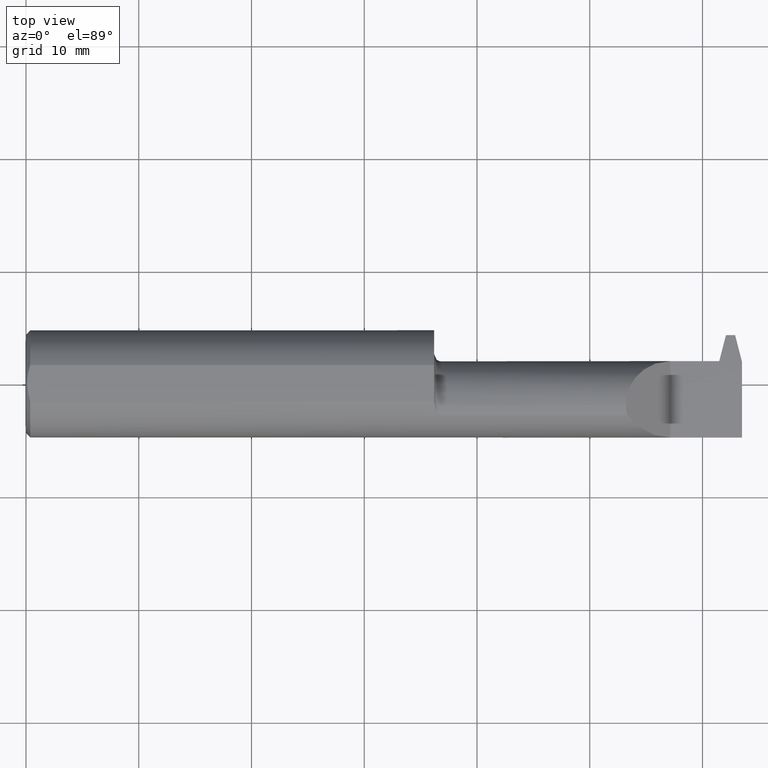
[diagram: clean part render]
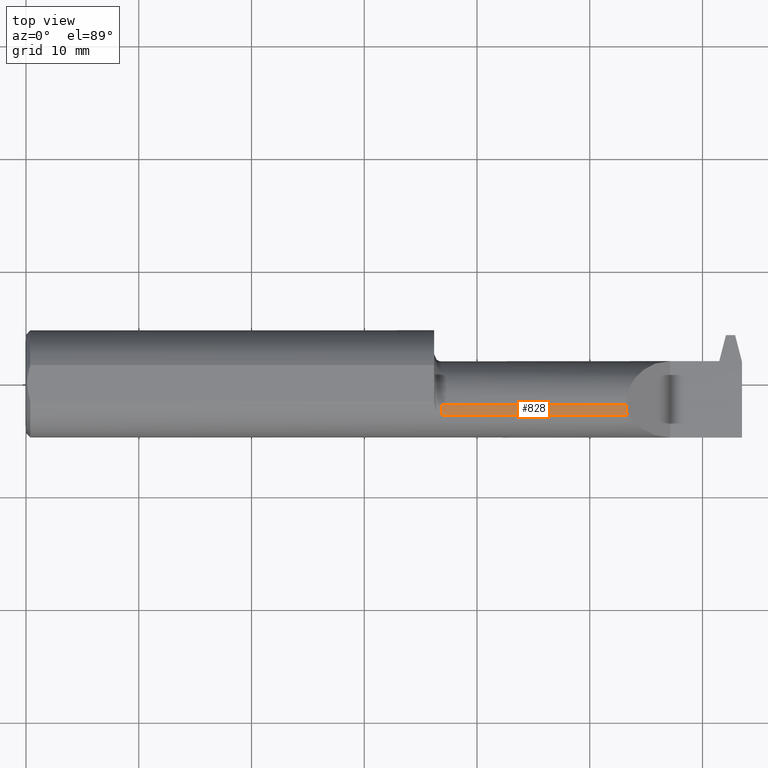
[diagram: same view with one face highlighted and labeled with its STEP entity id]
A machine part, top view. The second image highlights one B-rep face of the part: STEP entity #828.
In plain terms, the highlighted cylindrical surface (partial cylindrical patch) has radius 3.937 mm, axis along (-1, -0, -0).
Its self-contained STEP definition (entity closure, byte-faithful):
#67 = CARTESIAN_POINT ( 'NONE',  ( 2.095349999999999380, -0.07535000000000005582, 0.1549999999999999989 ) ) ;
#90 = DIRECTION ( 'NONE',  ( 1.000000000000000000, 0.000000000000000000, 0.000000000000000000 ) ) ;
#102 = FACE_OUTER_BOUND ( 'NONE', #288, .T. ) ;
#106 = CIRCLE ( 'NONE', #410, 0.1549999999999999989 ) ;
#108 = DIRECTION ( 'NONE',  ( -1.000000000000000000, -0.000000000000000000, -0.000000000000000000 ) ) ;
#121 = CARTESIAN_POINT ( 'NONE',  ( 1.450000000000000178, -0.1111655275381552427, 0.1508053314281814494 ) ) ;
#137 = ORIENTED_EDGE ( 'NONE', *, *, #215, .T. ) ;
#178 = CARTESIAN_POINT ( 'NONE',  ( 2.099544668571818207, -0.1111655275381547570, 0.1508053314281816715 ) ) ;
#215 = EDGE_CURVE ( 'NONE', #702, #319, #872, .T. ) ;
#233 = CARTESIAN_POINT ( 'NONE',  ( 1.450000000000000178, -0.07535000000000005582, 0.1549999999999999989 ) ) ;
#252 = VECTOR ( 'NONE', #90, 39.37007874015748143 ) ;
#264 = DIRECTION ( 'NONE',  ( 0.000000000000000000, 0.000000000000000000, 1.000000000000000000 ) ) ;
#288 = EDGE_LOOP ( 'NONE', ( #814, #776, #679, #137 ) ) ;
#304 = EDGE_CURVE ( 'NONE', #602, #702, #106, .T. ) ;
#306 = CARTESIAN_POINT ( 'NONE',  ( 1.425000000000000266, -0.07535000000000005582, 0.1549999999999999989 ) ) ;
#319 = VERTEX_POINT ( 'NONE', #178 ) ;
#336 = CYLINDRICAL_SURFACE ( 'NONE', #832, 0.1549999999999999989 ) ;
#338 = CARTESIAN_POINT ( 'NONE',  ( 2.099544668571818207, -0.1111655275381547570, 0.1508053314281816715 ) ) ;
#366 = EDGE_CURVE ( 'NONE', #936, #319, #579, .T. ) ;
#410 = AXIS2_PLACEMENT_3D ( 'NONE', #573, #803, #793 ) ;
#414 = CARTESIAN_POINT ( 'NONE',  ( 2.096754579645089045, -0.09941754239787796432, 0.1535954203549101948 ) ) ;
#492 = CARTESIAN_POINT ( 'NONE',  ( 1.922500000000000098, -0.1111655275381552427, 0.1508053314281814494 ) ) ;
#573 = CARTESIAN_POINT ( 'NONE',  ( 1.450000000000000178, -0.07535000000000005582, 0.000000000000000000 ) ) ;
#579 =( BOUNDED_CURVE ( )  B_SPLINE_CURVE ( 3, ( #870, #929, #414, #338 ),
 .UNSPECIFIED., .F., .T. ) 
 B_SPLINE_CURVE_WITH_KNOTS ( ( 4, 4 ),
 ( 0.000000000000000000, 0.2331751639699329859 ),
 .UNSPECIFIED. ) 
 CURVE ( )  GEOMETRIC_REPRESENTATION_ITEM ( )  RATIONAL_B_SPLINE_CURVE ( ( 1.000000000000000000, 0.9954742418208948340, 0.9954742418208948340, 1.000000000000000000 ) ) 
 REPRESENTATION_ITEM ( '' )  );
#602 = VERTEX_POINT ( 'NONE', #233 ) ;
#617 = LINE ( 'NONE', #306, #715 ) ;
#647 = EDGE_CURVE ( 'NONE', #936, #602, #617, .T. ) ;
#679 = ORIENTED_EDGE ( 'NONE', *, *, #304, .T. ) ;
#702 = VERTEX_POINT ( 'NONE', #121 ) ;
#715 = VECTOR ( 'NONE', #910, 39.37007874015748143 ) ;
#776 = ORIENTED_EDGE ( 'NONE', *, *, #647, .T. ) ;
#793 = DIRECTION ( 'NONE',  ( 0.000000000000000000, 0.000000000000000000, -1.000000000000000000 ) ) ;
#803 = DIRECTION ( 'NONE',  ( 1.000000000000000000, 0.000000000000000000, 0.000000000000000000 ) ) ;
#814 = ORIENTED_EDGE ( 'NONE', *, *, #366, .F. ) ;
#828 = ADVANCED_FACE ( 'NONE', ( #102 ), #336, .T. ) ;
#832 = AXIS2_PLACEMENT_3D ( 'NONE', #865, #108, #264 ) ;
#865 = CARTESIAN_POINT ( 'NONE',  ( 1.425000000000000266, -0.07535000000000005582, 0.000000000000000000 ) ) ;
#870 = CARTESIAN_POINT ( 'NONE',  ( 2.095349999999999380, -0.07535000000000005582, 0.1549999999999999989 ) ) ;
#872 = LINE ( 'NONE', #492, #252 ) ;
#910 = DIRECTION ( 'NONE',  ( -1.000000000000000000, -0.000000000000000000, -0.000000000000000000 ) ) ;
#929 = CARTESIAN_POINT ( 'NONE',  ( 2.095349999999999380, -0.08742475677085130570, 0.1550000000000000266 ) ) ;
#936 = VERTEX_POINT ( 'NONE', #67 ) ;